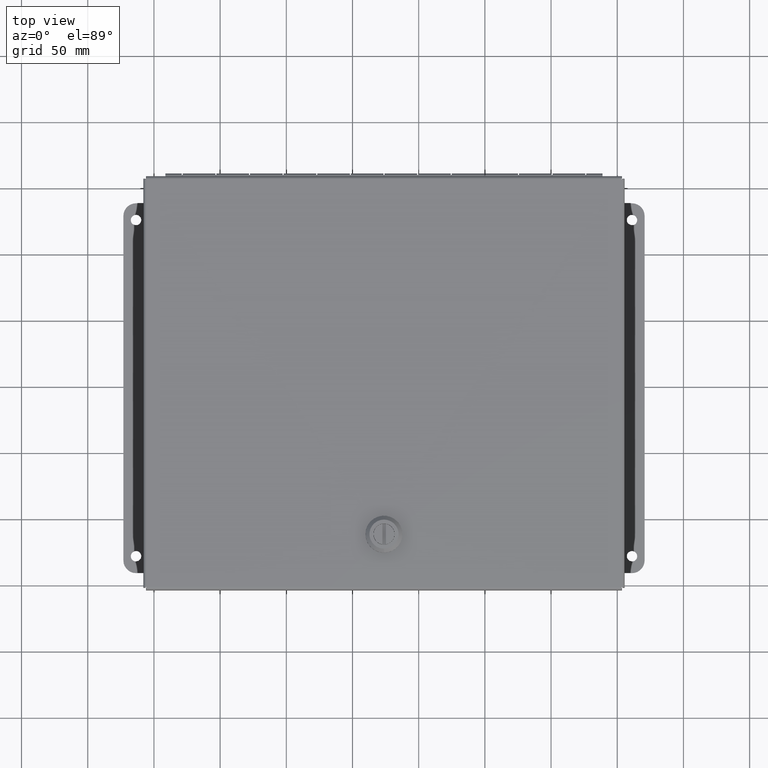
[diagram: clean part render]
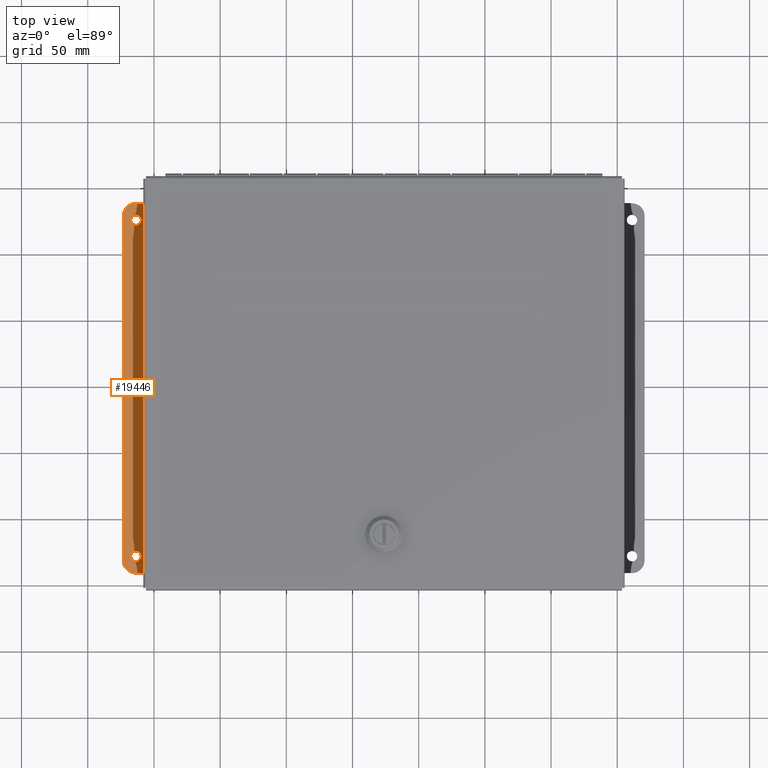
[diagram: same view with one face highlighted and labeled with its STEP entity id]
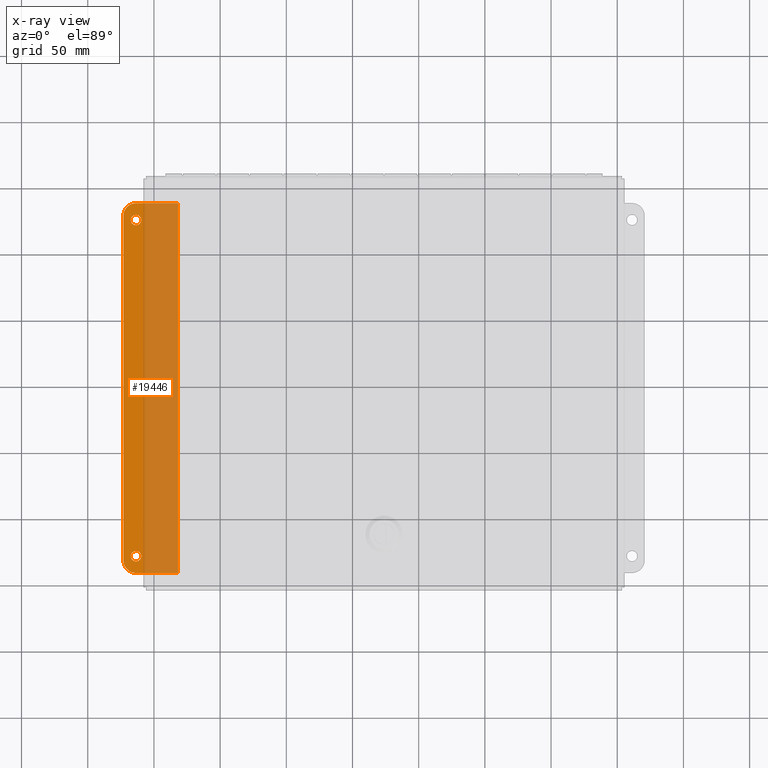
[diagram: x-ray of the same camera — body ghosted, the highlighted face saturated]
A machine part, top view. The second image highlights one B-rep face of the part: STEP entity #19446.
The next image is the same camera in x-ray: the body ghosted, the highlighted face saturated — about 64% of this face is hidden behind the body in this view.
In plain terms, the highlighted planar face has unit normal (-0, 0, 1).
Its self-contained STEP definition (entity closure, byte-faithful):
#546 = EDGE_CURVE ( 'NONE', #29971, #29971, #27649, .T. ) ;
#1407 = EDGE_LOOP ( 'NONE', ( #38500 ) ) ;
#1551 = AXIS2_PLACEMENT_3D ( 'NONE', #3378, #10050, #37294 ) ;
#1583 = VERTEX_POINT ( 'NONE', #37673 ) ;
#3035 = VECTOR ( 'NONE', #32771, 39.37007874015748143 ) ;
#3378 = CARTESIAN_POINT ( 'NONE',  ( -9.925968017746850336, -1.998899999999455002, -5.313500000001031509 ) ) ;
#3657 = VECTOR ( 'NONE', #25990, 39.37007874015748143 ) ;
#3927 = DIRECTION ( 'NONE',  ( -6.633095091514660015E-15, 8.483830530972219345E-15, 1.000000000000000000 ) ) ;
#4355 = EDGE_CURVE ( 'NONE', #19151, #19074, #39280, .T. ) ;
#5131 = CARTESIAN_POINT ( 'NONE',  ( -10.37500000000001421, 3.126100000000546775, -5.313500000001078583 ) ) ;
#5717 = CARTESIAN_POINT ( 'NONE',  ( -9.125000000000037303, -1.998899999999458332, -5.313500000001026180 ) ) ;
#7532 = CARTESIAN_POINT ( 'NONE',  ( -10.37500000000005684, -6.843899999999453421, -5.313500000000993317 ) ) ;
#7759 = EDGE_CURVE ( 'NONE', #26526, #15509, #22845, .T. ) ;
#8117 = ORIENTED_EDGE ( 'NONE', *, *, #7759, .T. ) ;
#8147 = ORIENTED_EDGE ( 'NONE', *, *, #19890, .T. ) ;
#8246 = DIRECTION ( 'NONE',  ( 5.827942386483758377E-15, 1.000000000000000000, -8.741913579725637566E-15 ) ) ;
#9127 = EDGE_LOOP ( 'NONE', ( #42956 ) ) ;
#9335 = FACE_BOUND ( 'NONE', #1407, .T. ) ;
#9875 = ORIENTED_EDGE ( 'NONE', *, *, #4355, .T. ) ;
#10050 = DIRECTION ( 'NONE',  ( -6.633095091514660015E-15, 8.483830530972219345E-15, 1.000000000000000000 ) ) ;
#10088 = CARTESIAN_POINT ( 'NONE',  ( -10.37500000000006040, -6.998899999999452781, -5.313500000000992429 ) ) ;
#12671 = DIRECTION ( 'NONE',  ( 1.409986061246072636E-14, 1.000000000000000000, -7.049930306230363182E-15 ) ) ;
#13497 = CIRCLE ( 'NONE', #30391, 0.3750000000000002220 ) ;
#13535 = DIRECTION ( 'NONE',  ( 6.633095091514660015E-15, -8.483830530972219345E-15, -1.000000000000000000 ) ) ;
#15509 = VERTEX_POINT ( 'NONE', #17541 ) ;
#15832 = DIRECTION ( 'NONE',  ( -4.550208014419040032E-15, -1.000000000000000000, 8.483830530972189368E-15 ) ) ;
#15950 = CARTESIAN_POINT ( 'NONE',  ( -10.75000000000001421, 3.126100000000546775, -5.313500000001080359 ) ) ;
#17332 = EDGE_LOOP ( 'NONE', ( #8117, #8147, #9875, #33761, #38021, #38082 ) ) ;
#17541 = CARTESIAN_POINT ( 'NONE',  ( -10.75000000000006040, -7.123899999999451005, -5.313500000000993317 ) ) ;
#18744 = EDGE_CURVE ( 'NONE', #1583, #40535, #31853, .T. ) ;
#19074 = VERTEX_POINT ( 'NONE', #28133 ) ;
#19151 = VERTEX_POINT ( 'NONE', #32594 ) ;
#19446 = ADVANCED_FACE ( 'NONE', ( #9335, #30179, #21140 ), #40253, .T. ) ;
#19890 = EDGE_CURVE ( 'NONE', #15509, #19151, #13497, .T. ) ;
#21140 = FACE_OUTER_BOUND ( 'NONE', #17332, .T. ) ;
#22845 = LINE ( 'NONE', #29681, #36136 ) ;
#23048 = LINE ( 'NONE', #5717, #38923 ) ;
#24460 = DIRECTION ( 'NONE',  ( 5.827942386483758377E-15, 1.000000000000000000, -8.741913579725637566E-15 ) ) ;
#24521 = AXIS2_PLACEMENT_3D ( 'NONE', #10088, #13535, #34946 ) ;
#25427 = EDGE_CURVE ( 'NONE', #40535, #26526, #26920, .T. ) ;
#25990 = DIRECTION ( 'NONE',  ( 1.000000000000000000, -4.550208014418984023E-15, 6.633095091514698669E-15 ) ) ;
#26526 = VERTEX_POINT ( 'NONE', #15950 ) ;
#26920 = CIRCLE ( 'NONE', #33375, 0.3750000000000002220 ) ;
#27649 = CIRCLE ( 'NONE', #24521, 0.1549999999999998601 ) ;
#28133 = CARTESIAN_POINT ( 'NONE',  ( -9.125000000000060396, -7.498899999999458110, -5.313500000000979995 ) ) ;
#29109 = DIRECTION ( 'NONE',  ( -6.633095091514660015E-15, 8.483830530972219345E-15, 1.000000000000000000 ) ) ;
#29124 = DIRECTION ( 'NONE',  ( 4.550208014419040032E-15, 1.000000000000000000, -8.483830530972189368E-15 ) ) ;
#29681 = CARTESIAN_POINT ( 'NONE',  ( -10.75000000000003553, -1.998899999999450783, -5.313500000001036838 ) ) ;
#29971 = VERTEX_POINT ( 'NONE', #7532 ) ;
#30179 = FACE_BOUND ( 'NONE', #9127, .T. ) ;
#30391 = AXIS2_PLACEMENT_3D ( 'NONE', #38406, #3927, #24460 ) ;
#31853 = LINE ( 'NONE', #43292, #3035 ) ;
#32404 = CARTESIAN_POINT ( 'NONE',  ( -10.37500000000001243, 3.156100000000547023, -5.313500000001078583 ) ) ;
#32594 = CARTESIAN_POINT ( 'NONE',  ( -10.37500000000006217, -7.498899999999452781, -5.313500000000987988 ) ) ;
#32771 = DIRECTION ( 'NONE',  ( -1.000000000000000000, 4.550208014418984023E-15, -6.633095091514698669E-15 ) ) ;
#33375 = AXIS2_PLACEMENT_3D ( 'NONE', #5131, #29109, #8246 ) ;
#33761 = ORIENTED_EDGE ( 'NONE', *, *, #37714, .T. ) ;
#34946 = DIRECTION ( 'NONE',  ( 1.409986061246072636E-14, 1.000000000000000000, -7.049930306230363182E-15 ) ) ;
#35399 = CIRCLE ( 'NONE', #42933, 0.1549999999999998601 ) ;
#35932 = CARTESIAN_POINT ( 'NONE',  ( -10.37500000000001243, 3.501100000000546775, -5.313500000001082135 ) ) ;
#36136 = VECTOR ( 'NONE', #15832, 39.37007874015748143 ) ;
#37294 = DIRECTION ( 'NONE',  ( 4.550208014419040032E-15, 1.000000000000000000, -8.483830530972189368E-15 ) ) ;
#37673 = CARTESIAN_POINT ( 'NONE',  ( -9.125000000000010658, 3.501100000000540557, -5.313500000001073253 ) ) ;
#37714 = EDGE_CURVE ( 'NONE', #19074, #1583, #23048, .T. ) ;
#38021 = ORIENTED_EDGE ( 'NONE', *, *, #18744, .T. ) ;
#38082 = ORIENTED_EDGE ( 'NONE', *, *, #25427, .T. ) ;
#38406 = CARTESIAN_POINT ( 'NONE',  ( -10.37500000000006040, -7.123899999999453669, -5.313500000000991541 ) ) ;
#38500 = ORIENTED_EDGE ( 'NONE', *, *, #546, .T. ) ;
#38923 = VECTOR ( 'NONE', #29124, 39.37007874015748143 ) ;
#39280 = LINE ( 'NONE', #41442, #3657 ) ;
#39699 = EDGE_CURVE ( 'NONE', #43161, #43161, #35399, .T. ) ;
#40157 = DIRECTION ( 'NONE',  ( 6.633095091514660015E-15, -8.483830530972219345E-15, -1.000000000000000000 ) ) ;
#40253 = PLANE ( 'NONE',  #1551 ) ;
#40535 = VERTEX_POINT ( 'NONE', #35932 ) ;
#41442 = CARTESIAN_POINT ( 'NONE',  ( -9.925968017746875205, -7.498899999999454558, -5.313500000000985324 ) ) ;
#42933 = AXIS2_PLACEMENT_3D ( 'NONE', #43440, #40157, #12671 ) ;
#42956 = ORIENTED_EDGE ( 'NONE', *, *, #39699, .T. ) ;
#43161 = VERTEX_POINT ( 'NONE', #32404 ) ;
#43292 = CARTESIAN_POINT ( 'NONE',  ( -9.925968017746825467, 3.501100000000544554, -5.313500000001078583 ) ) ;
#43440 = CARTESIAN_POINT ( 'NONE',  ( -10.37500000000001421, 3.001100000000547219, -5.313500000001077694 ) ) ;